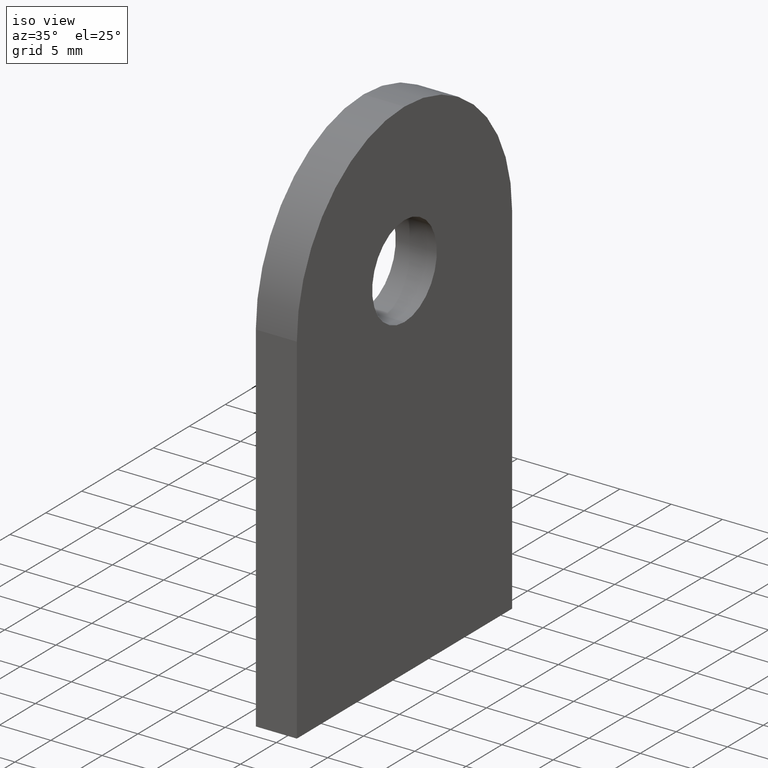
[diagram: clean part render]
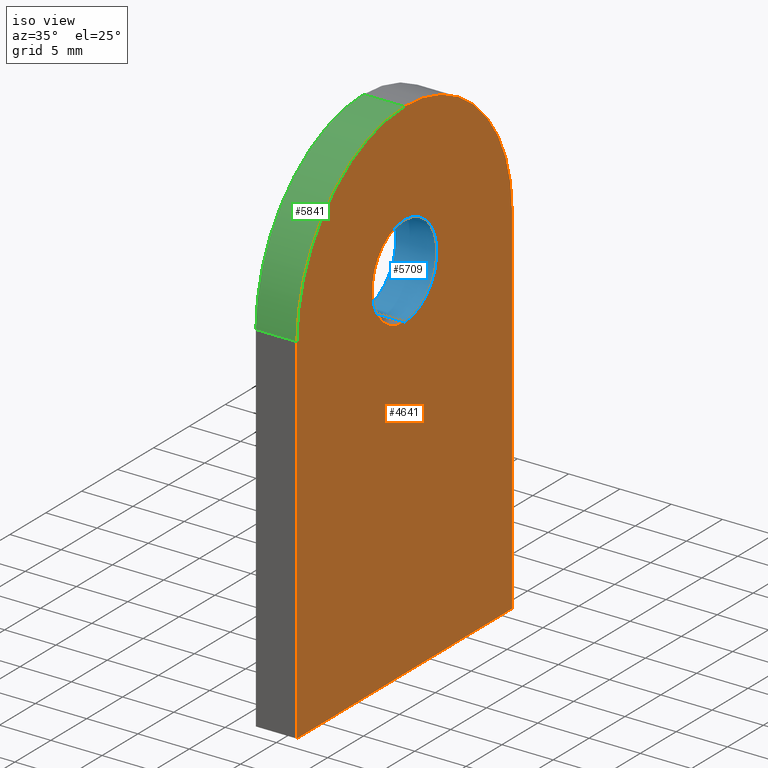
[diagram: same view with three faces highlighted in distinct colors, each labeled with its STEP entity id]
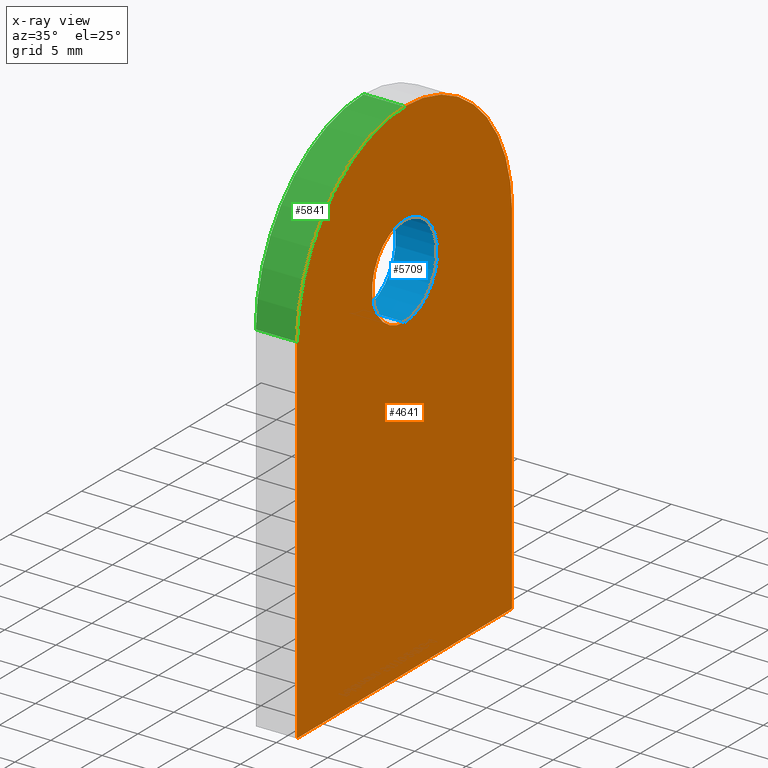
[diagram: x-ray of the same camera — body ghosted, the three highlighted faces saturated]
A machine part, iso view with three faces highlighted in distinct colors.
The next image is the same camera in x-ray (body ghosted, the three faces saturated) — at least one of them is partly hidden behind the body in this view.
Their STEP definitions:

[orange] entity #4641 — the highlighted planar face has unit normal (-1, -0, 0).
#150 = FACE_BOUND ( 'NONE', #466, .T. ) ;
#363 = VECTOR ( 'NONE', #3438, 1000.000000000000000 ) ;
#466 = EDGE_LOOP ( 'NONE', ( #3748, #10310 ) ) ;
#550 = PLANE ( 'NONE',  #4358 ) ;
#794 = CARTESIAN_POINT ( 'NONE',  ( 2.000000000000000000, 0.0000000000000000000, 34.99999999999999300 ) ) ;
#1168 = VECTOR ( 'NONE', #12428, 1000.000000000000000 ) ;
#1180 = DIRECTION ( 'NONE',  ( 0.0000000000000000000, -1.000000000000000000, 0.0000000000000000000 ) ) ;
#1336 = ORIENTED_EDGE ( 'NONE', *, *, #9915, .F. ) ;
#1503 = LINE ( 'NONE', #6370, #1168 ) ;
#1663 = EDGE_CURVE ( 'NONE', #7885, #9435, #12318, .T. ) ;
#1862 = ORIENTED_EDGE ( 'NONE', *, *, #7747, .F. ) ;
#1892 = DIRECTION ( 'NONE',  ( 0.0000000000000000000, 0.0000000000000000000, 1.000000000000000000 ) ) ;
#2074 = VERTEX_POINT ( 'NONE', #4142 ) ;
#2457 = DIRECTION ( 'NONE',  ( 1.000000000000000000, 0.0000000000000000000, 0.0000000000000000000 ) ) ;
#3337 = CARTESIAN_POINT ( 'NONE',  ( 2.000000000000000000, 14.99999999999999800, 34.99999999999999300 ) ) ;
#3397 = CARTESIAN_POINT ( 'NONE',  ( 2.000000000000000000, 14.99999999999999800, 34.99999999999999300 ) ) ;
#3438 = DIRECTION ( 'NONE',  ( 0.0000000000000000000, 4.956352788505163400E-017, -1.000000000000000000 ) ) ;
#3731 = VERTEX_POINT ( 'NONE', #9494 ) ;
#3748 = ORIENTED_EDGE ( 'NONE', *, *, #6798, .F. ) ;
#4054 = DIRECTION ( 'NONE',  ( 0.0000000000000000000, 0.0000000000000000000, -1.000000000000000000 ) ) ;
#4142 = CARTESIAN_POINT ( 'NONE',  ( 2.000000000000000000, 0.0000000000000000000, 30.99999999999999600 ) ) ;
#4358 = AXIS2_PLACEMENT_3D ( 'NONE', #8405, #6506, #9392 ) ;
#4641 = ADVANCED_FACE ( 'NONE', ( #150, #9118 ), #550, .F. ) ;
#4827 = DIRECTION ( 'NONE',  ( -1.000000000000000000, -0.0000000000000000000, 0.0000000000000000000 ) ) ;
#4919 = CIRCLE ( 'NONE', #4959, 15.00000000000000000 ) ;
#4959 = AXIS2_PLACEMENT_3D ( 'NONE', #794, #4827, #11962 ) ;
#4966 = EDGE_LOOP ( 'NONE', ( #7917, #1862, #1336, #12137, #8667 ) ) ;
#5176 = CIRCLE ( 'NONE', #6056, 4.500000000000000900 ) ;
#5575 = CARTESIAN_POINT ( 'NONE',  ( 2.000000000000000000, 15.00000000000000000, -3.061616997868383000E-015 ) ) ;
#5779 = VERTEX_POINT ( 'NONE', #3337 ) ;
#6056 = AXIS2_PLACEMENT_3D ( 'NONE', #11321, #2457, #10286 ) ;
#6273 = CARTESIAN_POINT ( 'NONE',  ( 2.000000000000000000, 15.00000000000000000, -3.061616997868383000E-015 ) ) ;
#6370 = CARTESIAN_POINT ( 'NONE',  ( 2.000000000000000000, -15.00000000000000000, -3.061616997868383000E-015 ) ) ;
#6506 = DIRECTION ( 'NONE',  ( -1.000000000000000000, -0.0000000000000000000, 0.0000000000000000000 ) ) ;
#6602 = CARTESIAN_POINT ( 'NONE',  ( 2.000000000000000000, 0.0000000000000000000, 49.99999999999999300 ) ) ;
#6798 = EDGE_CURVE ( 'NONE', #2074, #3731, #5176, .T. ) ;
#6975 = DIRECTION ( 'NONE',  ( -1.000000000000000000, -0.0000000000000000000, 0.0000000000000000000 ) ) ;
#7000 = VERTEX_POINT ( 'NONE', #5575 ) ;
#7009 = LINE ( 'NONE', #6273, #10740 ) ;
#7110 = VERTEX_POINT ( 'NONE', #9918 ) ;
#7165 = CIRCLE ( 'NONE', #11428, 4.500000000000000900 ) ;
#7187 = EDGE_CURVE ( 'NONE', #3731, #2074, #7165, .T. ) ;
#7637 = LINE ( 'NONE', #3397, #363 ) ;
#7747 = EDGE_CURVE ( 'NONE', #7110, #7885, #1503, .T. ) ;
#7885 = VERTEX_POINT ( 'NONE', #12917 ) ;
#7917 = ORIENTED_EDGE ( 'NONE', *, *, #1663, .F. ) ;
#8405 = CARTESIAN_POINT ( 'NONE',  ( 2.000000000000000000, 0.0000000000000000000, 34.99999999999999300 ) ) ;
#8667 = ORIENTED_EDGE ( 'NONE', *, *, #11616, .F. ) ;
#8852 = AXIS2_PLACEMENT_3D ( 'NONE', #10024, #6975, #1892 ) ;
#9118 = FACE_OUTER_BOUND ( 'NONE', #4966, .T. ) ;
#9392 = DIRECTION ( 'NONE',  ( 0.0000000000000000000, 0.0000000000000000000, 1.000000000000000000 ) ) ;
#9435 = VERTEX_POINT ( 'NONE', #6602 ) ;
#9494 = CARTESIAN_POINT ( 'NONE',  ( 2.000000000000000000, 5.510910596163087600E-016, 40.00000000000000000 ) ) ;
#9915 = EDGE_CURVE ( 'NONE', #7000, #7110, #7009, .T. ) ;
#9918 = CARTESIAN_POINT ( 'NONE',  ( 2.000000000000000000, -15.00000000000000000, -3.061616997868383000E-015 ) ) ;
#10024 = CARTESIAN_POINT ( 'NONE',  ( 2.000000000000000000, 0.0000000000000000000, 34.99999999999999300 ) ) ;
#10190 = CARTESIAN_POINT ( 'NONE',  ( 2.000000000000000000, 0.0000000000000000000, 35.50000000000000000 ) ) ;
#10286 = DIRECTION ( 'NONE',  ( 0.0000000000000000000, 0.0000000000000000000, -1.000000000000000000 ) ) ;
#10310 = ORIENTED_EDGE ( 'NONE', *, *, #7187, .F. ) ;
#10740 = VECTOR ( 'NONE', #1180, 1000.000000000000000 ) ;
#10770 = EDGE_CURVE ( 'NONE', #5779, #7000, #7637, .T. ) ;
#11207 = DIRECTION ( 'NONE',  ( 1.000000000000000000, 0.0000000000000000000, 0.0000000000000000000 ) ) ;
#11321 = CARTESIAN_POINT ( 'NONE',  ( 2.000000000000000000, 0.0000000000000000000, 35.50000000000000000 ) ) ;
#11428 = AXIS2_PLACEMENT_3D ( 'NONE', #10190, #11207, #4054 ) ;
#11616 = EDGE_CURVE ( 'NONE', #9435, #5779, #4919, .T. ) ;
#11962 = DIRECTION ( 'NONE',  ( 0.0000000000000000000, 0.0000000000000000000, 1.000000000000000000 ) ) ;
#12137 = ORIENTED_EDGE ( 'NONE', *, *, #10770, .F. ) ;
#12318 = CIRCLE ( 'NONE', #8852, 15.00000000000000000 ) ;
#12428 = DIRECTION ( 'NONE',  ( 0.0000000000000000000, 4.956352788505163400E-017, 1.000000000000000000 ) ) ;
#12917 = CARTESIAN_POINT ( 'NONE',  ( 2.000000000000000000, -14.99999999999999800, 34.99999999999999300 ) ) ;

[blue] entity #5709 — the highlighted cylindrical surface (partial cylindrical patch) has radius 4.5 mm, axis along (1, -0, -0).
#919 = ORIENTED_EDGE ( 'NONE', *, *, #7417, .T. ) ;
#1240 = DIRECTION ( 'NONE',  ( 1.000000000000000000, -0.0000000000000000000, -0.0000000000000000000 ) ) ;
#1403 = ORIENTED_EDGE ( 'NONE', *, *, #7844, .F. ) ;
#1678 = CARTESIAN_POINT ( 'NONE',  ( -2.000000000000000000, 0.0000000000000000000, 35.50000000000000000 ) ) ;
#2074 = VERTEX_POINT ( 'NONE', #4142 ) ;
#2457 = DIRECTION ( 'NONE',  ( 1.000000000000000000, 0.0000000000000000000, 0.0000000000000000000 ) ) ;
#2460 = LINE ( 'NONE', #7226, #8879 ) ;
#2706 = DIRECTION ( 'NONE',  ( 0.0000000000000000000, 0.0000000000000000000, -1.000000000000000000 ) ) ;
#2856 = DIRECTION ( 'NONE',  ( 1.000000000000000000, -0.0000000000000000000, -0.0000000000000000000 ) ) ;
#3731 = VERTEX_POINT ( 'NONE', #9494 ) ;
#4142 = CARTESIAN_POINT ( 'NONE',  ( 2.000000000000000000, 0.0000000000000000000, 30.99999999999999600 ) ) ;
#4397 = DIRECTION ( 'NONE',  ( 0.0000000000000000000, 0.0000000000000000000, -1.000000000000000000 ) ) ;
#4463 = EDGE_LOOP ( 'NONE', ( #1403, #5301, #919, #11174 ) ) ;
#4993 = VERTEX_POINT ( 'NONE', #8441 ) ;
#5049 = CIRCLE ( 'NONE', #9712, 4.500000000000000900 ) ;
#5176 = CIRCLE ( 'NONE', #6056, 4.500000000000000900 ) ;
#5301 = ORIENTED_EDGE ( 'NONE', *, *, #13022, .F. ) ;
#5349 = CYLINDRICAL_SURFACE ( 'NONE', #6131, 4.500000000000000900 ) ;
#5709 = ADVANCED_FACE ( 'NONE', ( #10969 ), #5349, .F. ) ;
#6056 = AXIS2_PLACEMENT_3D ( 'NONE', #11321, #2457, #10286 ) ;
#6131 = AXIS2_PLACEMENT_3D ( 'NONE', #10297, #1240, #4397 ) ;
#6577 = CARTESIAN_POINT ( 'NONE',  ( -2.000000000000000000, 5.510910596163087600E-016, 40.00000000000000000 ) ) ;
#6798 = EDGE_CURVE ( 'NONE', #2074, #3731, #5176, .T. ) ;
#6814 = DIRECTION ( 'NONE',  ( 1.000000000000000000, 0.0000000000000000000, 0.0000000000000000000 ) ) ;
#7226 = CARTESIAN_POINT ( 'NONE',  ( -2.000000000000000000, 0.0000000000000000000, 30.99999999999999600 ) ) ;
#7356 = VECTOR ( 'NONE', #2856, 1000.000000000000000 ) ;
#7417 = EDGE_CURVE ( 'NONE', #4993, #2074, #2460, .T. ) ;
#7819 = LINE ( 'NONE', #8872, #7356 ) ;
#7844 = EDGE_CURVE ( 'NONE', #8604, #3731, #7819, .T. ) ;
#8441 = CARTESIAN_POINT ( 'NONE',  ( -2.000000000000000000, 0.0000000000000000000, 30.99999999999999600 ) ) ;
#8604 = VERTEX_POINT ( 'NONE', #6577 ) ;
#8872 = CARTESIAN_POINT ( 'NONE',  ( -2.000000000000000000, 5.510910596163090500E-016, 40.00000000000000000 ) ) ;
#8879 = VECTOR ( 'NONE', #12062, 1000.000000000000000 ) ;
#9494 = CARTESIAN_POINT ( 'NONE',  ( 2.000000000000000000, 5.510910596163087600E-016, 40.00000000000000000 ) ) ;
#9712 = AXIS2_PLACEMENT_3D ( 'NONE', #1678, #6814, #2706 ) ;
#10286 = DIRECTION ( 'NONE',  ( 0.0000000000000000000, 0.0000000000000000000, -1.000000000000000000 ) ) ;
#10297 = CARTESIAN_POINT ( 'NONE',  ( -2.000000000000000000, 0.0000000000000000000, 35.50000000000000000 ) ) ;
#10969 = FACE_OUTER_BOUND ( 'NONE', #4463, .T. ) ;
#11174 = ORIENTED_EDGE ( 'NONE', *, *, #6798, .T. ) ;
#11321 = CARTESIAN_POINT ( 'NONE',  ( 2.000000000000000000, 0.0000000000000000000, 35.50000000000000000 ) ) ;
#12062 = DIRECTION ( 'NONE',  ( 1.000000000000000000, -0.0000000000000000000, -0.0000000000000000000 ) ) ;
#13022 = EDGE_CURVE ( 'NONE', #4993, #8604, #5049, .T. ) ;

[green] entity #5841 — the highlighted cylindrical surface (partial cylindrical patch) has radius 15 mm, axis along (-1, -0, -0).
#197 = CIRCLE ( 'NONE', #5941, 15.00000000000000000 ) ;
#1424 = CARTESIAN_POINT ( 'NONE',  ( 2.000000000000000000, 0.0000000000000000000, 34.99999999999999300 ) ) ;
#1663 = EDGE_CURVE ( 'NONE', #7885, #9435, #12318, .T. ) ;
#1892 = DIRECTION ( 'NONE',  ( 0.0000000000000000000, 0.0000000000000000000, 1.000000000000000000 ) ) ;
#1900 = EDGE_CURVE ( 'NONE', #2826, #6583, #197, .T. ) ;
#2164 = ORIENTED_EDGE ( 'NONE', *, *, #4864, .T. ) ;
#2208 = DIRECTION ( 'NONE',  ( -1.000000000000000000, -0.0000000000000000000, -0.0000000000000000000 ) ) ;
#2325 = AXIS2_PLACEMENT_3D ( 'NONE', #1424, #11493, #4481 ) ;
#2345 = CYLINDRICAL_SURFACE ( 'NONE', #2325, 15.00000000000000000 ) ;
#2520 = CARTESIAN_POINT ( 'NONE',  ( -2.000000000000000000, 0.0000000000000000000, 34.99999999999999300 ) ) ;
#2826 = VERTEX_POINT ( 'NONE', #8374 ) ;
#2958 = CARTESIAN_POINT ( 'NONE',  ( -2.000000000000000000, 0.0000000000000000000, 49.99999999999999300 ) ) ;
#3678 = ORIENTED_EDGE ( 'NONE', *, *, #8483, .F. ) ;
#3709 = VECTOR ( 'NONE', #2208, 1000.000000000000000 ) ;
#4481 = DIRECTION ( 'NONE',  ( 0.0000000000000000000, 0.0000000000000000000, 1.000000000000000000 ) ) ;
#4567 = FACE_OUTER_BOUND ( 'NONE', #9950, .T. ) ;
#4864 = EDGE_CURVE ( 'NONE', #9435, #6583, #6778, .T. ) ;
#5449 = LINE ( 'NONE', #8339, #3709 ) ;
#5841 = ADVANCED_FACE ( 'NONE', ( #4567 ), #2345, .T. ) ;
#5849 = DIRECTION ( 'NONE',  ( -1.000000000000000000, -0.0000000000000000000, -0.0000000000000000000 ) ) ;
#5941 = AXIS2_PLACEMENT_3D ( 'NONE', #2520, #11572, #12792 ) ;
#6583 = VERTEX_POINT ( 'NONE', #2958 ) ;
#6602 = CARTESIAN_POINT ( 'NONE',  ( 2.000000000000000000, 0.0000000000000000000, 49.99999999999999300 ) ) ;
#6778 = LINE ( 'NONE', #10946, #11784 ) ;
#6975 = DIRECTION ( 'NONE',  ( -1.000000000000000000, -0.0000000000000000000, 0.0000000000000000000 ) ) ;
#7885 = VERTEX_POINT ( 'NONE', #12917 ) ;
#8339 = CARTESIAN_POINT ( 'NONE',  ( 2.000000000000000000, -14.99999999999999800, 34.99999999999999300 ) ) ;
#8374 = CARTESIAN_POINT ( 'NONE',  ( -2.000000000000000000, -14.99999999999999800, 34.99999999999999300 ) ) ;
#8483 = EDGE_CURVE ( 'NONE', #7885, #2826, #5449, .T. ) ;
#8852 = AXIS2_PLACEMENT_3D ( 'NONE', #10024, #6975, #1892 ) ;
#9435 = VERTEX_POINT ( 'NONE', #6602 ) ;
#9950 = EDGE_LOOP ( 'NONE', ( #11414, #2164, #11003, #3678 ) ) ;
#10024 = CARTESIAN_POINT ( 'NONE',  ( 2.000000000000000000, 0.0000000000000000000, 34.99999999999999300 ) ) ;
#10946 = CARTESIAN_POINT ( 'NONE',  ( 2.000000000000000000, 0.0000000000000000000, 49.99999999999999300 ) ) ;
#11003 = ORIENTED_EDGE ( 'NONE', *, *, #1900, .F. ) ;
#11414 = ORIENTED_EDGE ( 'NONE', *, *, #1663, .T. ) ;
#11493 = DIRECTION ( 'NONE',  ( -1.000000000000000000, -0.0000000000000000000, -0.0000000000000000000 ) ) ;
#11572 = DIRECTION ( 'NONE',  ( -1.000000000000000000, -0.0000000000000000000, 0.0000000000000000000 ) ) ;
#11784 = VECTOR ( 'NONE', #5849, 1000.000000000000000 ) ;
#12318 = CIRCLE ( 'NONE', #8852, 15.00000000000000000 ) ;
#12792 = DIRECTION ( 'NONE',  ( 0.0000000000000000000, 0.0000000000000000000, 1.000000000000000000 ) ) ;
#12917 = CARTESIAN_POINT ( 'NONE',  ( 2.000000000000000000, -14.99999999999999800, 34.99999999999999300 ) ) ;